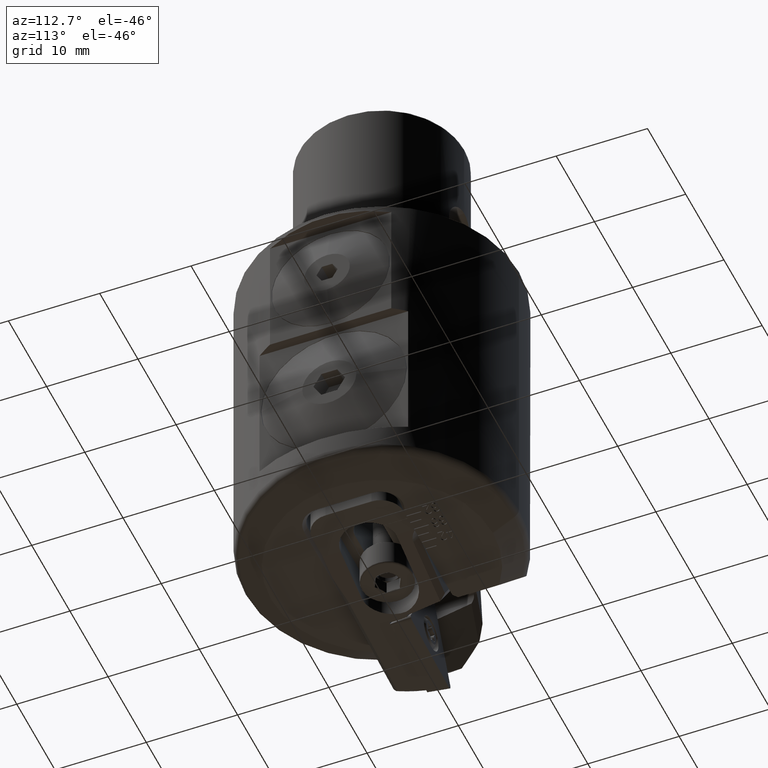
[diagram: clean part render]
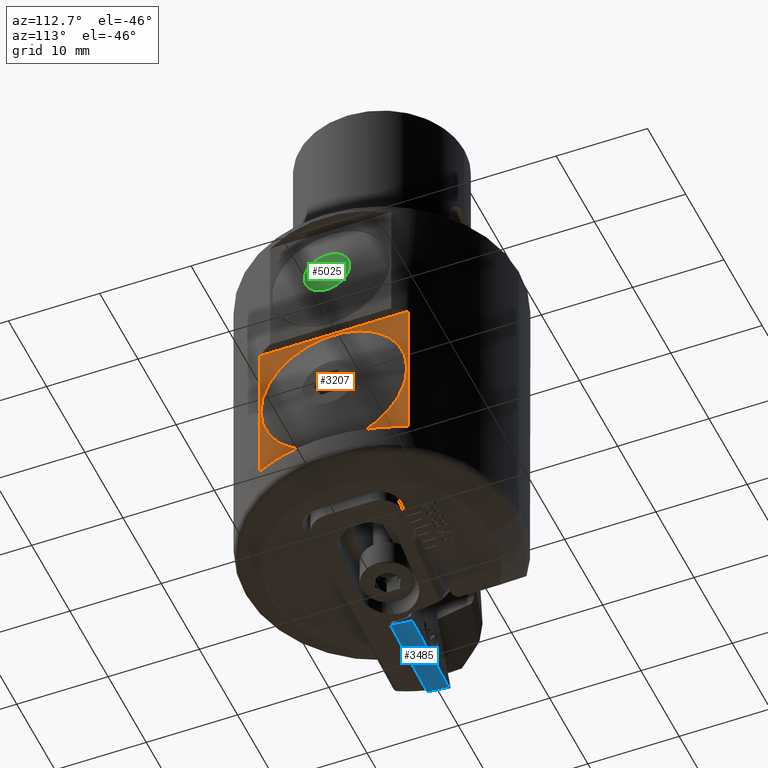
[diagram: same view with three faces highlighted in distinct colors, each labeled with its STEP entity id]
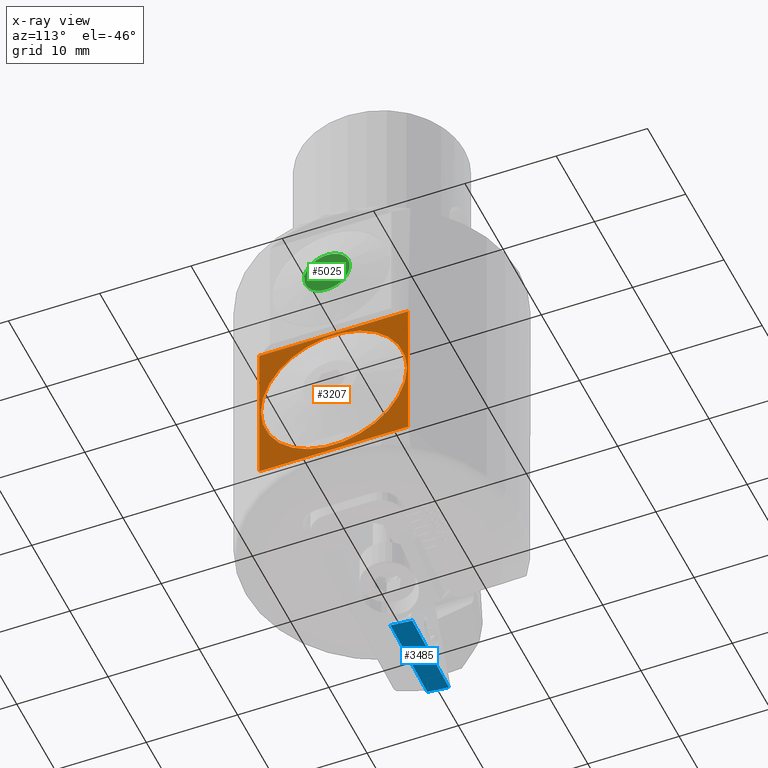
[diagram: x-ray of the same camera — body ghosted, the three highlighted faces saturated]
A machine part, auxiliary view with three faces highlighted in distinct colors.
The next image is the same camera in x-ray (body ghosted, the three faces saturated) — at least one of them is partly hidden behind the body in this view.
Their STEP definitions:

[orange] entity #3207 — the highlighted planar face has unit normal (-1, 0, 0).
#2395=VERTEX_POINT('NONE',#6366);
#3207=ADVANCED_FACE('NONE',(#7276,#7277),#7278,.F.);
#3269=VERTEX_POINT('NONE',#7345);
#3375=EDGE_CURVE('NONE',#5399,#3269,#7460,.F.);
#3435=EDGE_CURVE('NONE',#3563,#2395,#7525,.T.);
#3563=VERTEX_POINT('NONE',#7674);
#3877=VERTEX_POINT('NONE',#8023);
#3935=EDGE_CURVE('NONE',#3269,#5701,#8088,.T.);
#4413=EDGE_CURVE('NONE',#3877,#5399,#8614,.T.);
#4665=EDGE_CURVE('NONE',#2395,#3563,#8890,.T.);
#5399=VERTEX_POINT('NONE',#9685);
#5555=EDGE_CURVE('NONE',#3877,#5701,#9852,.T.);
#5701=VERTEX_POINT('NONE',#10015);
#6366=CARTESIAN_POINT('',(12.6,8.0,-23.4));
#7276=FACE_OUTER_BOUND('',#14270,.T.);
#7277=FACE_BOUND('',#14271,.T.);
#7278=PLANE('',#14272);
#7345=CARTESIAN_POINT('',(12.6,8.13879597975033,-32.0));
#7460=LINE('',#14674,#14675);
#7525=CIRCLE('',#14768,8.0);
#7674=CARTESIAN_POINT('',(12.6,-8.0,-23.4));
#8023=CARTESIAN_POINT('',(12.6,-8.13879597975033,-15.2));
#8088=LINE('',#16281,#16282);
#8614=LINE('',#17767,#17768);
#8890=CIRCLE('',#18674,8.0);
#9685=CARTESIAN_POINT('',(12.6,-8.13879597975033,-32.0));
#9852=LINE('',#21893,#21894);
#10015=CARTESIAN_POINT('',(12.6,8.13879597975033,-15.2));
#14270=EDGE_LOOP('',(#24235,#24236,#24237,#24238));
#14271=EDGE_LOOP('',(#24239,#24240));
#14272=AXIS2_PLACEMENT_3D('',#24241,#24242,#24243);
#14674=CARTESIAN_POINT('',(12.6,-15.0,-32.0));
#14675=VECTOR('',#24415,1.0);
#14768=AXIS2_PLACEMENT_3D('',#24471,#24472,#24473);
#16281=CARTESIAN_POINT('',(12.6,8.13879597975033,21.2728418399496));
#16282=VECTOR('',#25167,1.0);
#17767=CARTESIAN_POINT('',(12.6,-8.13879597975033,21.2728418399496));
#17768=VECTOR('',#25686,1.0);
#18674=AXIS2_PLACEMENT_3D('',#25986,#25987,#25988);
#21893=CARTESIAN_POINT('',(12.6,-15.0,-15.2));
#21894=VECTOR('',#26825,1.0);
#24235=ORIENTED_EDGE('',*,*,#4413,.T.);
#24236=ORIENTED_EDGE('',*,*,#3375,.T.);
#24237=ORIENTED_EDGE('',*,*,#3935,.T.);
#24238=ORIENTED_EDGE('',*,*,#5555,.F.);
#24239=ORIENTED_EDGE('',*,*,#3435,.F.);
#24240=ORIENTED_EDGE('',*,*,#4665,.F.);
#24241=CARTESIAN_POINT('',(12.6,-15.0,-32.0));
#24242=DIRECTION('',(-1.0,1.06620802795672E-032,1.10093815260206E-048));
#24243=DIRECTION('',(0.0,1.03257349760524E-016,-1.0));
#24415=DIRECTION('',(-1.06620802795672E-032,-1.0,2.85689580054581E-033));
#24471=CARTESIAN_POINT('',(12.6,0.0,-23.4));
#24472=DIRECTION('',(1.0,-1.06620802795672E-032,-1.10093815260206E-048));
#24473=DIRECTION('',(-1.06620802795672E-032,-1.0,1.17382909658816E-080));
#25167=DIRECTION('',(0.0,-0.0,1.0));
#25686=DIRECTION('',(0.0,0.0,-1.0));
#25986=CARTESIAN_POINT('',(12.6,0.0,-23.4));
#25987=DIRECTION('',(1.0,-1.06620802795672E-032,-1.10093815260206E-048));
#25988=DIRECTION('',(-1.06620802795672E-032,-1.0,1.17382909658816E-080));
#26825=DIRECTION('',(1.06620802795672E-032,1.0,2.8568958005458E-033));

[blue] entity #3485 — the highlighted planar face has unit normal (0.0519, -0.1219, -0.9912).
#2147=VERTEX_POINT('NONE',#6098);
#2393=EDGE_CURVE('NONE',#2147,#3481,#6364,.T.);
#2987=VERTEX_POINT('NONE',#7026);
#3481=VERTEX_POINT('NONE',#7578);
#3485=ADVANCED_FACE('NONE',(#7582),#7583,.T.);
#3701=EDGE_CURVE('NONE',#5195,#3481,#7831,.T.);
#4265=EDGE_CURVE('NONE',#2987,#5195,#8454,.T.);
#5195=VERTEX_POINT('NONE',#9465);
#5839=EDGE_CURVE('NONE',#2147,#2987,#10177,.T.);
#6098=CARTESIAN_POINT('',(-15.6588913831527,-1.6,-39.6876250505829));
#6364=LINE('',#11524,#11525);
#7026=CARTESIAN_POINT('',(-6.05918352181011,-1.6,-39.1845256798042));
#7578=CARTESIAN_POINT('',(-15.6435973903247,0.78,-39.9794518182351));
#7582=FACE_OUTER_BOUND('',#14889,.T.);
#7583=PLANE('',#14890);
#7831=LINE('',#15577,#15578);
#8454=LINE('',#17348,#17349);
#9465=CARTESIAN_POINT('',(-6.04388952898211,0.78,-39.4763524474565));
#10177=LINE('',#22697,#22698);
#11524=CARTESIAN_POINT('',(-15.6435973903247,0.78,-39.9794518182351));
#11525=VECTOR('',#23281,1000.0);
#14889=EDGE_LOOP('',(#24540,#24541,#24542,#24543));
#14890=AXIS2_PLACEMENT_3D('',#24544,#24545,#24546);
#15577=CARTESIAN_POINT('',(-15.6435973903247,0.78,-39.9794518182351));
#15578=VECTOR('',#24901,1000.0);
#17348=CARTESIAN_POINT('',(-6.04388952898211,0.78,-39.4763524474565));
#17349=VECTOR('',#25558,1000.0);
#22697=CARTESIAN_POINT('',(-15.6588913831527,-1.6,-39.6876250505829));
#22698=VECTOR('',#27261,1000.0);
#23281=DIRECTION('',(0.00637814862380448,0.992546151641322,-0.121702325705528));
#24540=ORIENTED_EDGE('',*,*,#5839,.F.);
#24541=ORIENTED_EDGE('',*,*,#2393,.T.);
#24542=ORIENTED_EDGE('',*,*,#3701,.F.);
#24543=ORIENTED_EDGE('',*,*,#4265,.F.);
#24544=CARTESIAN_POINT('',(-15.6435973903247,0.78,-39.9794518182351));
#24545=DIRECTION('',(0.0519458519613726,-0.121869343405148,-0.991185901636018));
#24546=DIRECTION('',(-0.063729164269824,0.990098331526391,-0.125075527303012));
#24901=DIRECTION('',(-0.998629534754575,1.75384465899263E-017,-0.0523359562429137));
#25558=DIRECTION('',(0.00637814862380519,0.992546151641322,-0.121702325705528));
#27261=DIRECTION('',(0.998629534754575,-1.75384465899263E-017,0.0523359562429138));

[green] entity #5025 — the highlighted planar face has unit normal (1, 0, -0).
#2325=VERTEX_POINT('NONE',#6292);
#2469=VERTEX_POINT('NONE',#6452);
#2541=EDGE_CURVE('NONE',#3547,#2469,#6532,.T.);
#2739=EDGE_CURVE('NONE',#3225,#4567,#6754,.T.);
#2801=VERTEX_POINT('NONE',#6822);
#3225=VERTEX_POINT('NONE',#7298);
#3523=EDGE_CURVE('NONE',#4573,#5401,#7631,.T.);
#3547=VERTEX_POINT('NONE',#7658);
#3705=EDGE_CURVE('NONE',#2325,#3225,#7835,.T.);
#4567=VERTEX_POINT('NONE',#8787);
#4573=VERTEX_POINT('NONE',#8794);
#4619=EDGE_CURVE('NONE',#5401,#4573,#8842,.T.);
#4689=EDGE_CURVE('NONE',#2801,#2325,#8914,.T.);
#5025=ADVANCED_FACE('NONE',(#9279,#9280),#9281,.T.);
#5295=EDGE_CURVE('NONE',#2469,#2801,#9569,.T.);
#5351=EDGE_CURVE('NONE',#4567,#3547,#9632,.T.);
#5401=VERTEX_POINT('NONE',#9687);
#6292=CARTESIAN_POINT('',(14.4,0.577350269189627,-7.0));
#6452=CARTESIAN_POINT('',(14.4,0.577350269189626,-9.0));
#6532=LINE('',#12122,#12123);
#6754=LINE('',#12983,#12984);
#6822=CARTESIAN_POINT('',(14.4,1.15470053837925,-8.0));
#7298=CARTESIAN_POINT('',(14.4,-0.577350269189626,-7.0));
#7631=CIRCLE('',#15001,2.5);
#7658=CARTESIAN_POINT('',(14.4,-0.577350269189626,-9.0));
#7835=LINE('',#15583,#15584);
#8787=CARTESIAN_POINT('',(14.4,-1.15470053837925,-8.0));
#8794=CARTESIAN_POINT('',(14.4,5.48029442618441E-016,-10.5));
#8842=CIRCLE('',#18488,2.5);
#8914=LINE('',#18709,#18710);
#9279=FACE_OUTER_BOUND('',#20093,.T.);
#9280=FACE_BOUND('',#20094,.T.);
#9281=PLANE('',#20095);
#9569=LINE('',#20957,#20958);
#9632=LINE('',#21144,#21145);
#9687=CARTESIAN_POINT('',(14.4,0.0,-5.5));
#12122=CARTESIAN_POINT('',(14.4,-0.288675134594813,-9.0));
#12123=VECTOR('',#23472,1.0);
#12983=CARTESIAN_POINT('',(14.4,-0.180421959121758,-6.3125));
#12984=VECTOR('',#23714,1.0);
#15001=AXIS2_PLACEMENT_3D('',#24700,#24701,#24702);
#15583=CARTESIAN_POINT('',(14.4,0.288675134594813,-7.0));
#15584=VECTOR('',#24902,1.0);
#18488=AXIS2_PLACEMENT_3D('',#25947,#25948,#25949);
#18709=CARTESIAN_POINT('',(14.4,0.469097093716571,-6.8125));
#18710=VECTOR('',#25994,1.0);
#20093=EDGE_LOOP('',(#26324,#26325));
#20094=EDGE_LOOP('',(#26326,#26327,#26328,#26329,#26330,#26331));
#20095=AXIS2_PLACEMENT_3D('',#26332,#26333,#26334);
#20957=CARTESIAN_POINT('',(14.4,1.26295371385231,-7.8125));
#20958=VECTOR('',#26577,1.0);
#21144=CARTESIAN_POINT('',(14.4,-1.55162884844712,-7.3125));
#21145=VECTOR('',#26637,1.0);
#23472=DIRECTION('',(2.50891537290418E-046,1.0,3.97793187932849E-031));
#23714=DIRECTION('',(-5.46209566878535E-016,-0.5,-0.866025403784439));
#24700=CARTESIAN_POINT('',(14.4,0.0,-8.0));
#24701=DIRECTION('',(-1.0,0.0,6.30708480942542E-016));
#24702=DIRECTION('',(6.30708480942542E-016,0.0,1.0));
#24902=DIRECTION('',(0.0,-1.0,-0.0));
#25947=CARTESIAN_POINT('',(14.4,0.0,-8.0));
#25948=DIRECTION('',(-1.0,0.0,6.30708480942542E-016));
#25949=DIRECTION('',(6.30708480942542E-016,0.0,1.0));
#25994=DIRECTION('',(5.46209566878535E-016,-0.5,0.866025403784439));
#26324=ORIENTED_EDGE('',*,*,#4619,.F.);
#26325=ORIENTED_EDGE('',*,*,#3523,.F.);
#26326=ORIENTED_EDGE('',*,*,#5295,.F.);
#26327=ORIENTED_EDGE('',*,*,#2541,.F.);
#26328=ORIENTED_EDGE('',*,*,#5351,.F.);
#26329=ORIENTED_EDGE('',*,*,#2739,.F.);
#26330=ORIENTED_EDGE('',*,*,#3705,.F.);
#26331=ORIENTED_EDGE('',*,*,#4689,.F.);
#26332=CARTESIAN_POINT('',(14.4,0.0,-5.5));
#26333=DIRECTION('',(1.0,0.0,-6.30708480942542E-016));
#26334=DIRECTION('',(0.0,-1.0,0.0));
#26577=DIRECTION('',(5.46209566878535E-016,0.5,0.866025403784439));
#26637=DIRECTION('',(-5.46209566878535E-016,0.5,-0.866025403784439));